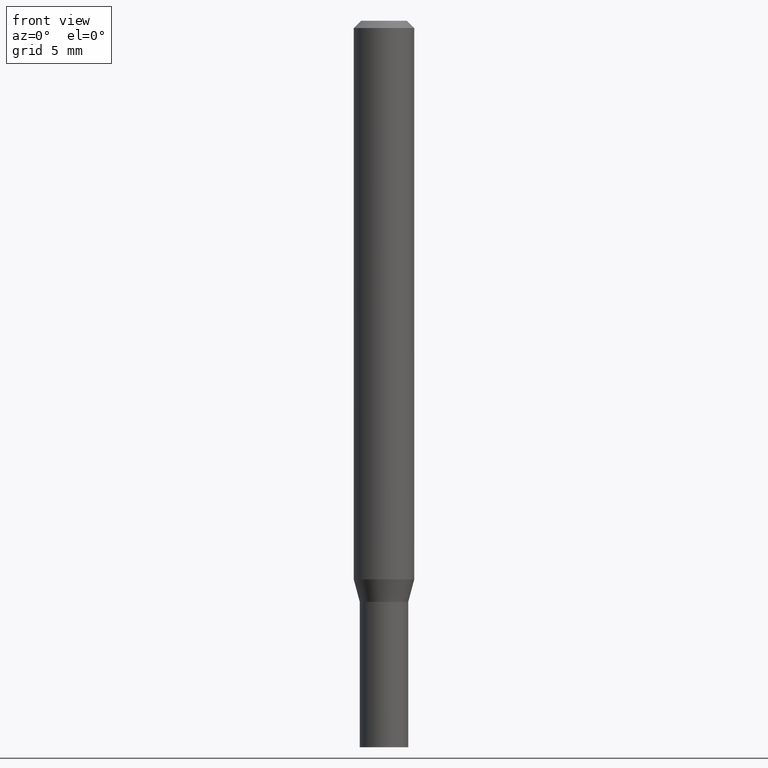
[diagram: clean part render]
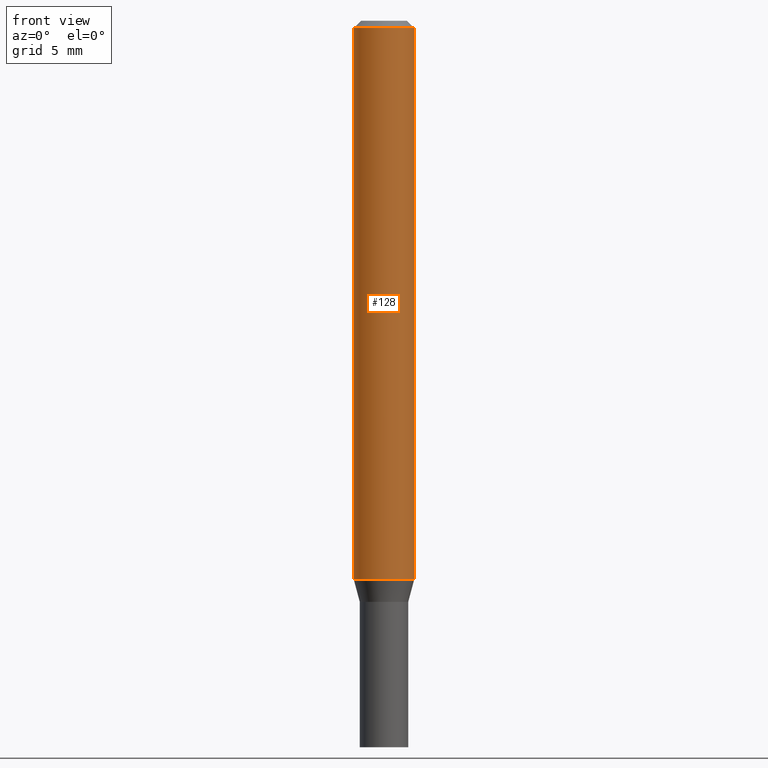
[diagram: same view with one face highlighted and labeled with its STEP entity id]
A machine part, front view. The second image highlights one B-rep face of the part: STEP entity #128.
In plain terms, the highlighted cylindrical surface (edge-blend (fillet) strip) has radius 1.5875 mm, axis along (-0, 0, 1).
Its self-contained STEP definition (entity closure, byte-faithful):
#14 = CIRCLE ( 'NONE', #236, 0.06250000000000000000 ) ;
#22 = LINE ( 'NONE', #92, #461 ) ;
#28 = ORIENTED_EDGE ( 'NONE', *, *, #312, .T. ) ;
#32 = CYLINDRICAL_SURFACE ( 'NONE', #250, 0.06250000000000000000 ) ;
#34 = DIRECTION ( 'NONE',  ( -2.445468806185136877E-29, 3.491481338843145188E-15, 1.000000000000000000 ) ) ;
#74 = CARTESIAN_POINT ( 'NONE',  ( 2.820479894509568805E-29, -4.026897784733760650E-15, -1.153349364905389640 ) ) ;
#92 = CARTESIAN_POINT ( 'NONE',  ( 0.06250000000000000000, -4.364351673553916694E-16, 3.047610484872459871E-30 ) ) ;
#94 = EDGE_CURVE ( 'NONE', #420, #216, #159, .T. ) ;
#97 = ORIENTED_EDGE ( 'NONE', *, *, #276, .F. ) ;
#112 = DIRECTION ( 'NONE',  ( 1.000000000000000000, -6.982962677686266711E-15, 4.876176775795935793E-29 ) ) ;
#128 = ADVANCED_FACE ( 'NONE', ( #267 ), #32, .T. ) ;
#133 = EDGE_CURVE ( 'NONE', #420, #397, #440, .T. ) ;
#141 = ORIENTED_EDGE ( 'NONE', *, *, #94, .F. ) ;
#159 = LINE ( 'NONE', #299, #160 ) ;
#160 = VECTOR ( 'NONE', #34, 39.37007874015748143 ) ;
#161 = DIRECTION ( 'NONE',  ( -2.445468806185136597E-29, 3.491481338843145583E-15, 1.000000000000000000 ) ) ;
#170 = DIRECTION ( 'NONE',  ( 1.000000000000000000, -6.982962677686266711E-15, 0.000000000000000000 ) ) ;
#177 = CARTESIAN_POINT ( 'NONE',  ( 0.06250000000000000000, -4.463332952089153109E-15, -1.153349364905389640 ) ) ;
#187 = CARTESIAN_POINT ( 'NONE',  ( 0.000000000000000000, 0.000000000000000000, 0.000000000000000000 ) ) ;
#201 = CARTESIAN_POINT ( 'NONE',  ( 0.06250000000000000000, -4.888073874380388472E-16, -0.01499999999999999944 ) ) ;
#216 = VERTEX_POINT ( 'NONE', #337 ) ;
#236 = AXIS2_PLACEMENT_3D ( 'NONE', #281, #417, #170 ) ;
#245 = DIRECTION ( 'NONE',  ( -2.445468806185136877E-29, 3.491481338843145188E-15, 1.000000000000000000 ) ) ;
#250 = AXIS2_PLACEMENT_3D ( 'NONE', #187, #466, #112 ) ;
#253 = VERTEX_POINT ( 'NONE', #201 ) ;
#267 = FACE_OUTER_BOUND ( 'NONE', #323, .T. ) ;
#276 = EDGE_CURVE ( 'NONE', #216, #253, #14, .T. ) ;
#281 = CARTESIAN_POINT ( 'NONE',  ( 3.668203209277705088E-31, -5.237222008264718399E-17, -0.01499999999999999944 ) ) ;
#299 = CARTESIAN_POINT ( 'NONE',  ( -0.06250000000000000000, 4.440892098500626162E-16, -3.074334431409316114E-30 ) ) ;
#312 = EDGE_CURVE ( 'NONE', #397, #253, #22, .T. ) ;
#315 = CARTESIAN_POINT ( 'NONE',  ( -0.06250000000000000000, -3.582808574883698823E-15, -1.153349364905389640 ) ) ;
#323 = EDGE_LOOP ( 'NONE', ( #141, #333, #28, #97 ) ) ;
#333 = ORIENTED_EDGE ( 'NONE', *, *, #133, .T. ) ;
#335 = DIRECTION ( 'NONE',  ( 1.000000000000000000, -6.982962677686270655E-15, 0.000000000000000000 ) ) ;
#337 = CARTESIAN_POINT ( 'NONE',  ( -0.06250000000000000000, -1.595545792558141446E-15, -0.01499999999999999944 ) ) ;
#395 = AXIS2_PLACEMENT_3D ( 'NONE', #74, #161, #335 ) ;
#397 = VERTEX_POINT ( 'NONE', #177 ) ;
#417 = DIRECTION ( 'NONE',  ( -2.445468806185136597E-29, 3.491481338843145583E-15, 1.000000000000000000 ) ) ;
#420 = VERTEX_POINT ( 'NONE', #315 ) ;
#440 = CIRCLE ( 'NONE', #395, 0.06250000000000000000 ) ;
#461 = VECTOR ( 'NONE', #245, 39.37007874015748143 ) ;
#466 = DIRECTION ( 'NONE',  ( -2.445468806185136597E-29, 3.491481338843145583E-15, 1.000000000000000000 ) ) ;